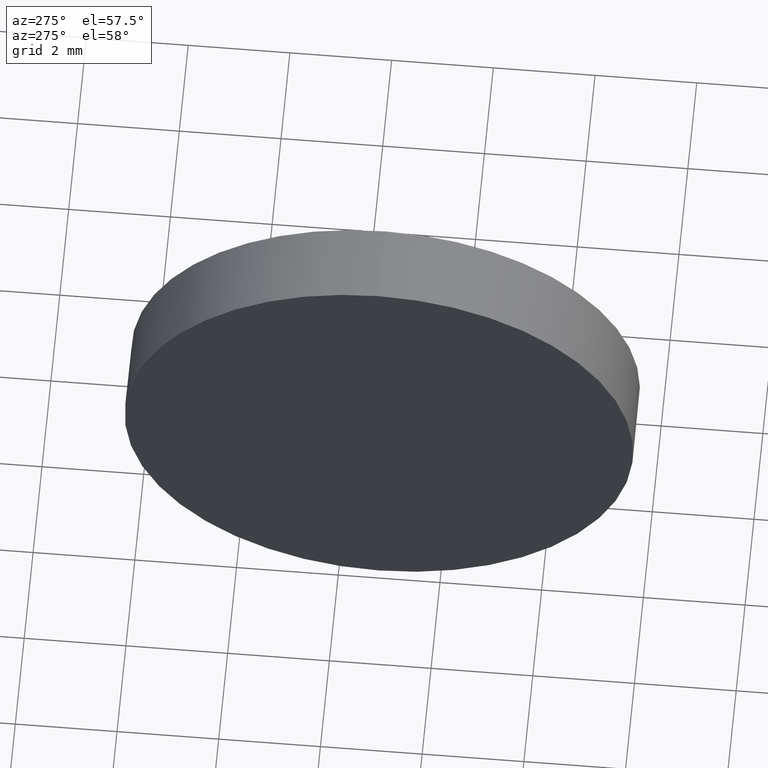
[diagram: clean part render]
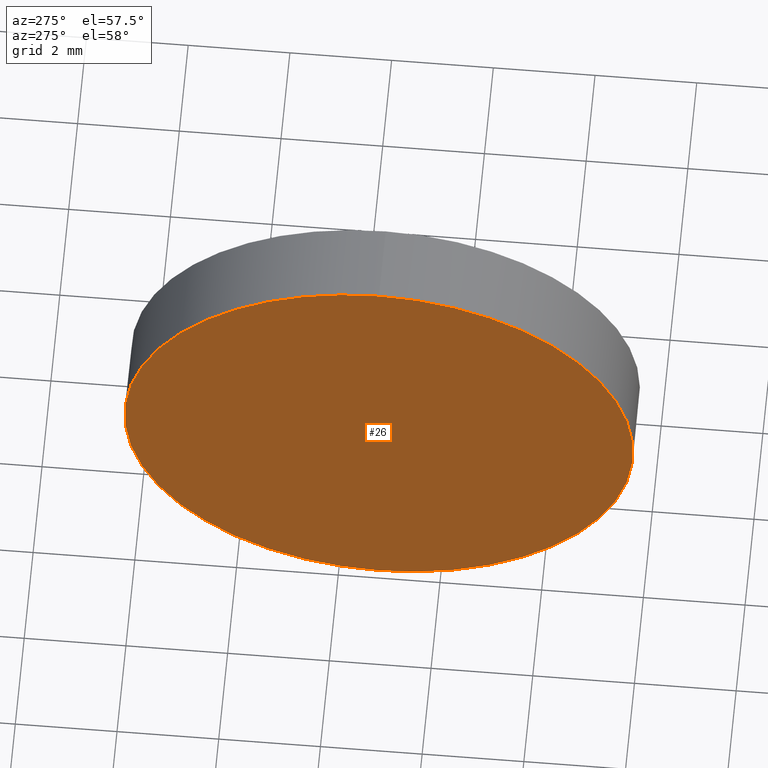
[diagram: same view with one face highlighted and labeled with its STEP entity id]
A machine part, auxiliary view. The second image highlights one B-rep face of the part: STEP entity #26.
In plain terms, the highlighted planar face has unit normal (1, 0, 0).
Its self-contained STEP definition (entity closure, byte-faithful):
#19 = CARTESIAN_POINT ( 'NONE',  ( 672.0380780452615000, 143.2040928477547100, 0.0000000000000000000 ) ) ;
#26 = ADVANCED_FACE ( 'NONE', ( #155 ), #28, .F. ) ;
#28 = PLANE ( 'NONE',  #110 ) ;
#29 = CARTESIAN_POINT ( 'NONE',  ( 672.0380780452615000, 143.2040928477547100, -5.000000000000004400 ) ) ;
#30 = CARTESIAN_POINT ( 'NONE',  ( 672.0380780452615000, 143.2040928477547100, 0.0000000000000000000 ) ) ;
#46 = DIRECTION ( 'NONE',  ( 0.0000000000000000000, 0.0000000000000000000, 1.000000000000000000 ) ) ;
#51 = DIRECTION ( 'NONE',  ( -1.000000000000000000, -0.0000000000000000000, -0.0000000000000000000 ) ) ;
#62 = CIRCLE ( 'NONE', #158, 5.000000000000004400 ) ;
#81 = DIRECTION ( 'NONE',  ( 1.000000000000000000, 0.0000000000000000000, 0.0000000000000000000 ) ) ;
#88 = DIRECTION ( 'NONE',  ( -1.000000000000000000, -0.0000000000000000000, -0.0000000000000000000 ) ) ;
#96 = CARTESIAN_POINT ( 'NONE',  ( 672.0380780452615000, 143.2040928477547100, 0.0000000000000000000 ) ) ;
#108 = EDGE_CURVE ( 'NONE', #117, #184, #163, .T. ) ;
#109 = EDGE_LOOP ( 'NONE', ( #157, #112 ) ) ;
#110 = AXIS2_PLACEMENT_3D ( 'NONE', #96, #81, #164 ) ;
#112 = ORIENTED_EDGE ( 'NONE', *, *, #108, .T. ) ;
#117 = VERTEX_POINT ( 'NONE', #29 ) ;
#120 = CARTESIAN_POINT ( 'NONE',  ( 672.0380780452615000, 143.2040928477547100, 5.000000000000004400 ) ) ;
#138 = AXIS2_PLACEMENT_3D ( 'NONE', #30, #51, #147 ) ;
#145 = EDGE_CURVE ( 'NONE', #184, #117, #62, .T. ) ;
#147 = DIRECTION ( 'NONE',  ( 0.0000000000000000000, 0.0000000000000000000, 1.000000000000000000 ) ) ;
#155 = FACE_OUTER_BOUND ( 'NONE', #109, .T. ) ;
#157 = ORIENTED_EDGE ( 'NONE', *, *, #145, .T. ) ;
#158 = AXIS2_PLACEMENT_3D ( 'NONE', #19, #88, #46 ) ;
#163 = CIRCLE ( 'NONE', #138, 5.000000000000004400 ) ;
#164 = DIRECTION ( 'NONE',  ( 0.0000000000000000000, 0.0000000000000000000, -1.000000000000000000 ) ) ;
#184 = VERTEX_POINT ( 'NONE', #120 ) ;